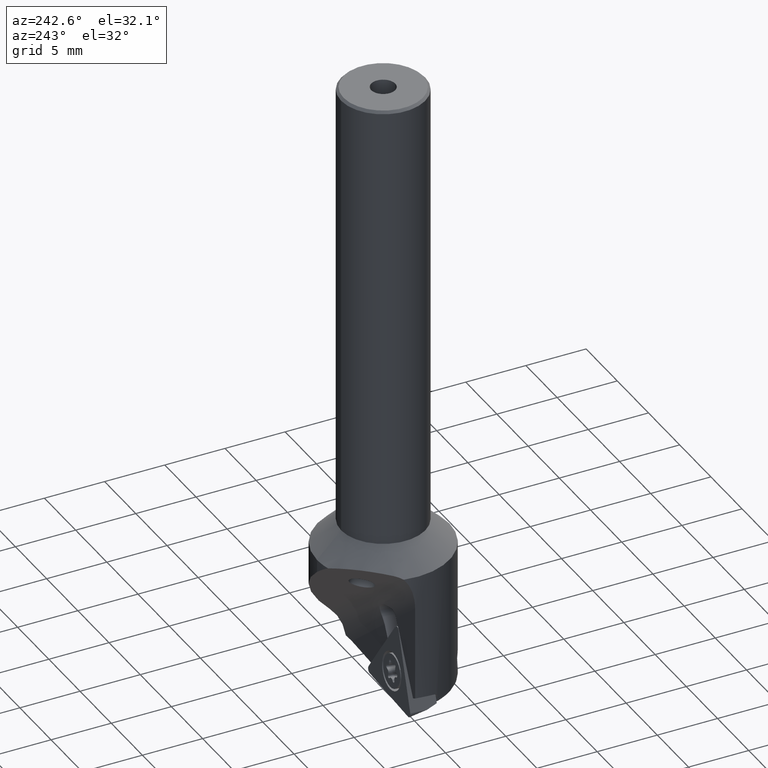
[diagram: clean part render]
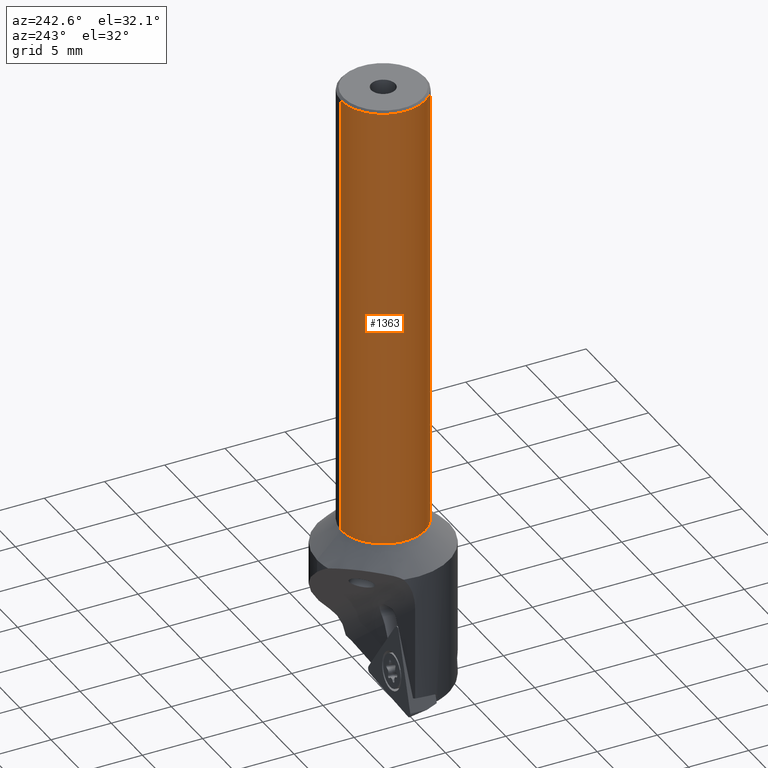
[diagram: same view with one face highlighted and labeled with its STEP entity id]
A machine part, auxiliary view. The second image highlights one B-rep face of the part: STEP entity #1363.
In plain terms, the highlighted cylindrical surface (partial cylindrical patch) has radius 3.5 mm, axis along (-0, 0, -1).
Its self-contained STEP definition (entity closure, byte-faithful):
#799=VERTEX_POINT('NONE',#1860);
#977=EDGE_CURVE('NONE',#799,#1101,#2060,.T.);
#1101=VERTEX_POINT('NONE',#2197);
#1257=EDGE_CURVE('NONE',#1443,#1453,#2367,.T.);
#1357=EDGE_CURVE('NONE',#1443,#799,#2477,.T.);
#1363=ADVANCED_FACE('NONE',(#2483),#2484,.T.);
#1443=VERTEX_POINT('NONE',#2571);
#1453=VERTEX_POINT('NONE',#2581);
#1477=EDGE_CURVE('NONE',#1453,#1101,#2606,.T.);
#1860=CARTESIAN_POINT('',(0.0,3.5,34.4));
#2060=LINE('',#3488,#3489);
#2197=CARTESIAN_POINT('',(0.0,3.5,-3.0));
#2367=LINE('',#4003,#4004);
#2477=CIRCLE('',#4179,3.5);
#2483=FACE_OUTER_BOUND('',#4188,.T.);
#2484=CYLINDRICAL_SURFACE('',#4189,3.5);
#2571=CARTESIAN_POINT('',(4.28626379701574E-016,-3.5,34.4));
#2581=CARTESIAN_POINT('',(4.28626379701574E-016,-3.5,-3.0));
#2606=CIRCLE('',#4360,3.5);
#3488=CARTESIAN_POINT('',(0.0,3.5,0.0));
#3489=VECTOR('',#5146,1000.0);
#4003=CARTESIAN_POINT('',(4.28626379701574E-016,-3.5,0.0));
#4004=VECTOR('',#5477,1000.0);
#4179=AXIS2_PLACEMENT_3D('',#5606,#5607,#5608);
#4188=EDGE_LOOP('',(#5614,#5615,#5616,#5617));
#4189=AXIS2_PLACEMENT_3D('',#5618,#5619,#5620);
#4360=AXIS2_PLACEMENT_3D('',#5722,#5723,#5724);
#5146=DIRECTION('',(0.0,0.0,-1.0));
#5477=DIRECTION('',(0.0,0.0,-1.0));
#5606=CARTESIAN_POINT('',(0.0,0.0,34.4));
#5607=DIRECTION('',(0.0,0.0,-1.0));
#5608=DIRECTION('',(0.0,1.0,0.0));
#5614=ORIENTED_EDGE('',*,*,#1257,.F.);
#5615=ORIENTED_EDGE('',*,*,#1357,.T.);
#5616=ORIENTED_EDGE('',*,*,#977,.T.);
#5617=ORIENTED_EDGE('',*,*,#1477,.F.);
#5618=CARTESIAN_POINT('',(0.0,0.0,0.0));
#5619=DIRECTION('',(-0.0,0.0,-1.0));
#5620=DIRECTION('',(0.0,1.0,0.0));
#5722=CARTESIAN_POINT('',(0.0,0.0,-3.0));
#5723=DIRECTION('',(0.0,0.0,-1.0));
#5724=DIRECTION('',(0.0,1.0,0.0));